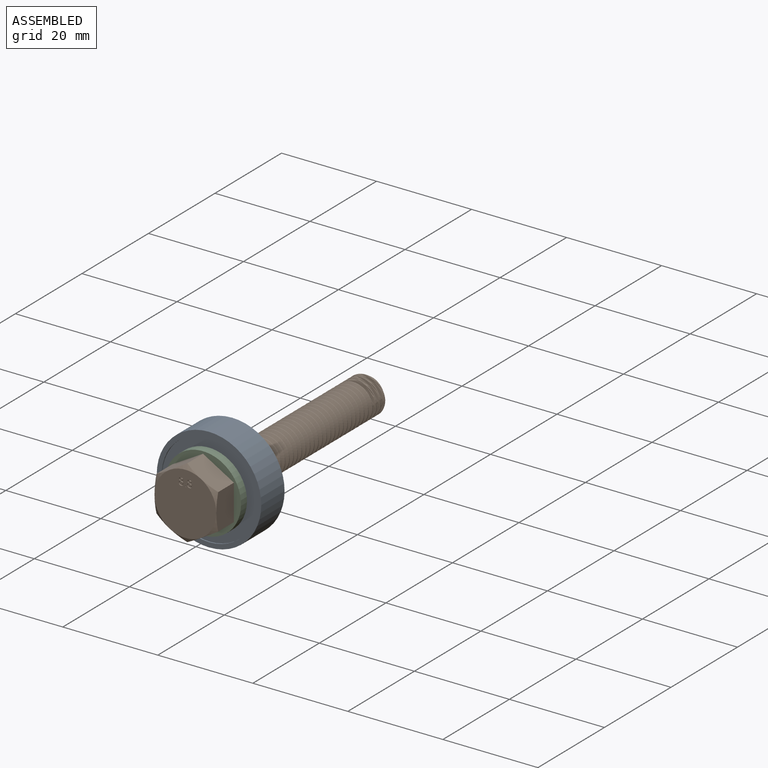
[diagram: assembled view]
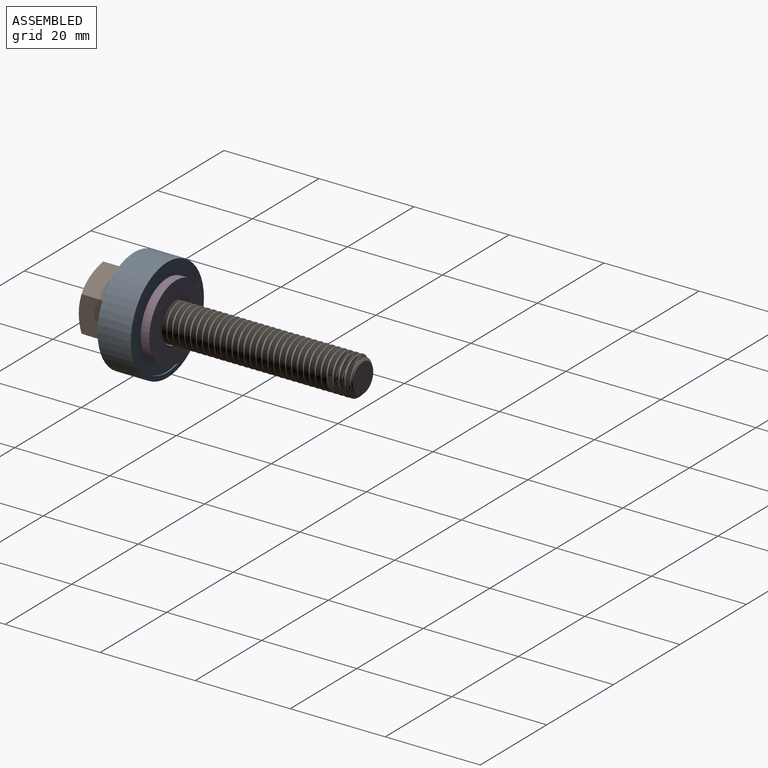
[diagram: assembled view, second angle]
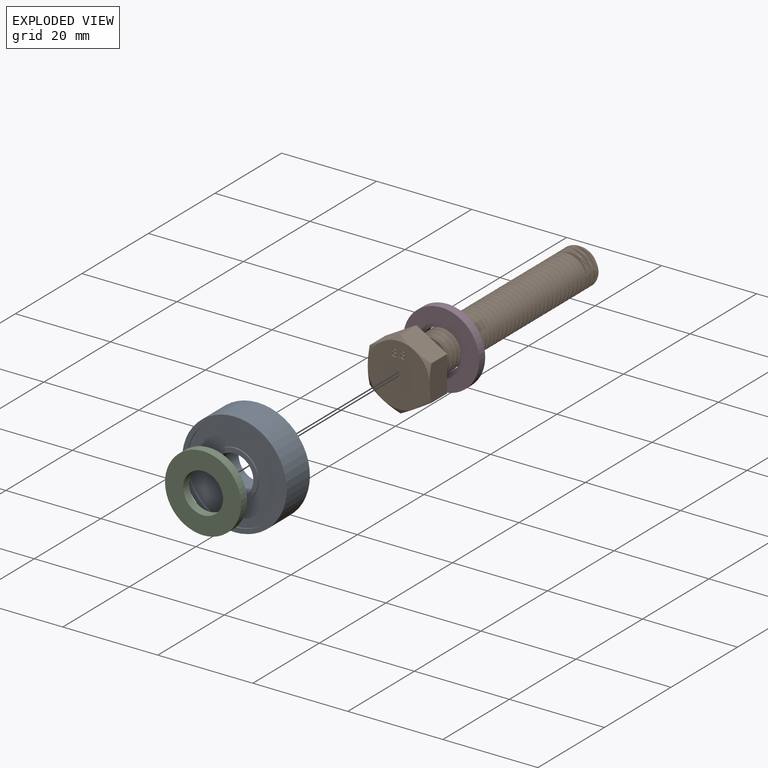
[diagram: exploded view]
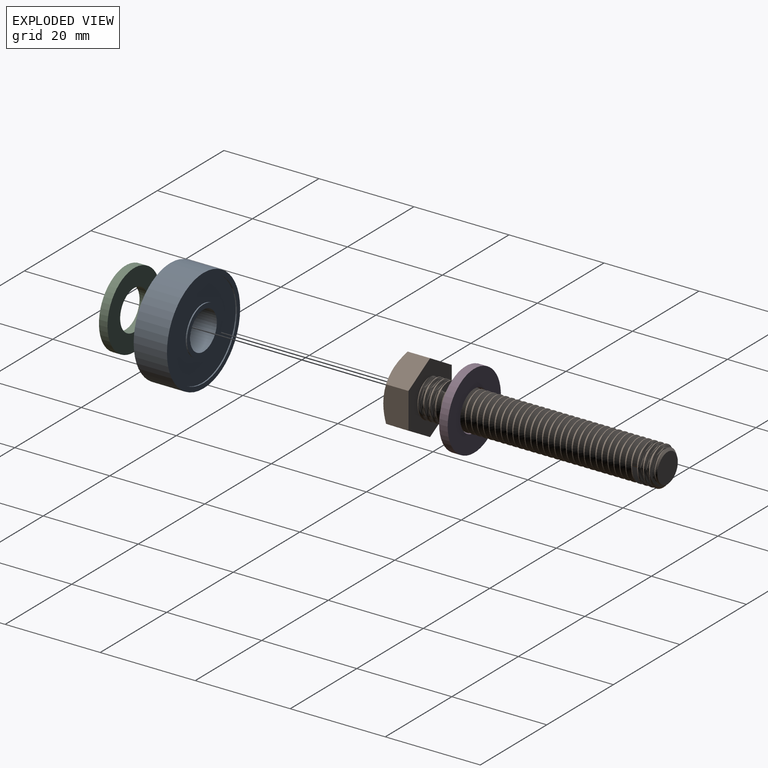
[diagram: exploded view, second angle]
ASSEMBLY  parts=4 mates=4
PART A: 12 faces, bbox 22x7x22 mm
  f0: cylinder r=5mm len=10mm, axis (0,1,0), area 7.9mm2, adj f4,f11
  f1: cylinder r=4mm len=8mm, axis (0,1,0), area 175.9mm2, adj f3,f4
  f2: cylinder r=5mm len=10mm, axis (0,1,0), area 7.9mm2, adj f3,f10
  f3: plane 10x10mm, normal (0,-1,0), area 28.3mm2, adj f1,f2
  f4: plane 10x10mm, normal (0,1,0), area 28.3mm2, adj f0,f1
  f5: cylinder r=10mm len=20mm, axis (0,1,0), area 15.7mm2, adj f9,f11
  f6: cylinder r=10mm len=20mm, axis (0,1,0), area 15.7mm2, adj f8,f10
  f7: cylinder r=11mm len=22mm, axis (0,1,0), area 483.8mm2, adj f8,f9
  f8: plane 22x22mm, normal (0,-1,0), area 66mm2, adj f6,f7
  f9: plane 22x22mm, normal (0,1,0), area 66mm2, adj f5,f7
  f10: plane 20x20mm, normal (0,-1,0), area 235.6mm2, adj f2,f6
  f11: plane 20x20mm, normal (0,1,0), area 235.6mm2, adj f0,f5
PART B: 63 faces, bbox 56.7x15.6x15.6 mm
  f0: plane 0.59x0.59mm, normal (-1,0,0), area 0.3mm2, adj f4,f5,f6,f7
  f1: plane 0.47x0.43mm, normal (-1,0,0), area 0.2mm2, adj f8,f9,f10,f11
  f2: plane 0.59x0.59mm, normal (-1,0,0), area 0.3mm2, adj f12,f13,f14,f15
  f3: plane 0.47x0.43mm, normal (-1,0,0), area 0.2mm2, adj f16,f17,f18,f19
  f4: extruded ~0.3x0.3mm, area 0.1mm2, adj f0,f5,f7,f21
  f5: extruded ~0.3x0.29mm, area 0.1mm2, adj f0,f4,f6,f21
  f6: extruded ~0.3x0.3mm, area 0.1mm2, adj f0,f5,f7,f21
  f7: extruded ~0.29x0.29mm, area 0.1mm2, adj f0,f4,f6,f21
  f8: extruded ~0.25x0.24mm, area 0.1mm2, adj f1,f9,f11,f21
  f9: extruded ~0.25x0.24mm, area 0.1mm2, adj f1,f8,f10,f21
  f10: extruded ~0.25x0.24mm, area 0.1mm2, adj f1,f9,f11,f21
  f11: extruded ~0.25x0.24mm, area 0.1mm2, adj f1,f8,f10,f21
  f12: extruded ~0.3x0.3mm, area 0.1mm2, adj f2,f13,f15,f22
  f13: extruded ~0.3x0.29mm, area 0.1mm2, adj f2,f12,f14,f22
  f14: extruded ~0.3x0.3mm, area 0.1mm2, adj f2,f13,f15,f22
  f15: extruded ~0.29x0.29mm, area 0.1mm2, adj f2,f12,f14,f22
  f16: extruded ~0.25x0.24mm, area 0.1mm2, adj f3,f17,f19,f22
  f17: extruded ~0.25x0.24mm, area 0.1mm2, adj f3,f16,f18,f22
  f18: extruded ~0.25x0.24mm, area 0.1mm2, adj f3,f17,f19,f22
  f19: extruded ~0.25x0.24mm, area 0.1mm2, adj f3,f16,f18,f22
  f20: plane 0.2x0.2mm, normal (-1,0,0), area 0mm2, adj f23,f24,f25,f26
  f21: plane 1.56x0.99mm, normal (-1,0,0), area 0.8mm2, adj f4,f5,f6,f7,f8,f9,f10,f11
  f22: plane 1.56x0.99mm, normal (-1,0,0), area 0.8mm2, adj f12,f13,f14,f15,f16,f17,f18,f19
  f23: plane 0.25x0.2mm, normal (0,1,0), area 0mm2, adj f20,f24,f26,f43
  f24: plane 0.25x0.2mm, normal (0,0,1), area 0mm2, adj f20,f23,f25,f43
  f25: plane 0.25x0.2mm, normal (0,-1,0), area 0mm2, adj f20,f24,f26,f43
  f26: plane 0.25x0.2mm, normal (0,0,-1), area 0mm2, adj f20,f23,f25,f43
  f27: extruded ~0.49x0.47mm, area 0.2mm2, adj f21,f28,f34,f43
  f28: extruded ~0.39x0.29mm, area 0.1mm2, adj f21,f27,f29,f43
  f29: extruded ~0.31x0.25mm, area 0.1mm2, adj f21,f28,f30,f43
  f30: extruded ~0.43x0.39mm, area 0.2mm2, adj f21,f29,f31,f43
  f31: extruded ~0.44x0.39mm, area 0.2mm2, adj f21,f30,f32,f43
  f32: extruded ~0.3x0.25mm, area 0.1mm2, adj f21,f31,f33,f43
  f33: extruded ~0.4x0.29mm, area 0.1mm2, adj f21,f32,f34,f43
  f34: extruded ~0.49x0.47mm, area 0.2mm2, adj f21,f27,f33,f43
  f35: extruded ~0.49x0.47mm, area 0.2mm2, adj f22,f36,f42,f43
  f36: extruded ~0.39x0.29mm, area 0.1mm2, adj f22,f35,f37,f43
  f37: extruded ~0.31x0.25mm, area 0.1mm2, adj f22,f36,f38,f43
  f38: extruded ~0.43x0.39mm, area 0.2mm2, adj f22,f37,f39,f43
  f39: extruded ~0.44x0.39mm, area 0.2mm2, adj f22,f38,f40,f43
  f40: extruded ~0.3x0.25mm, area 0.1mm2, adj f22,f39,f41,f43
  f41: extruded ~0.4x0.29mm, area 0.1mm2, adj f22,f40,f42,f43
  f42: extruded ~0.49x0.47mm, area 0.2mm2, adj f22,f35,f41,f43
  f43: plane 13x13mm, normal (-1,0,0), area 130.3mm2, adj f23,f24,f25,f26,f27,f28,f29,f30
  f44: cone r=6.5mm half-angle=60deg, axis (1,0,0), area 4.2mm2, adj f43,f50,f51
  f45: cone r=6.5mm half-angle=60deg, axis (1,0,0), area 4.2mm2, adj f43,f51,f52
  f46: cone r=6.5mm half-angle=60deg, axis (1,0,0), area 4.2mm2, adj f43,f52,f53
  f47: cone r=6.5mm half-angle=60deg, axis (1,0,0), area 4.2mm2, adj f43,f53,f54
  f48: cone r=6.5mm half-angle=60deg, axis (1,0,0), area 4.2mm2, adj f43,f50,f55
  f49: cone r=6.5mm half-angle=60deg, axis (1,0,0), area 4.2mm2, adj f43,f54,f55
  f50: plane 8.12x5.92mm, normal (0,1,0), area 38.3mm2, adj f44,f48,f51,f55,f58
  f51: plane 7.12x5.92mm, normal (0,0.5,0.87), area 38.3mm2, adj f44,f45,f50,f52,f58
  f52: plane 7.12x5.92mm, normal (0,-0.5,0.87), area 38.3mm2, adj f45,f46,f51,f53,f58
  f53: plane 8.12x5.92mm, normal (0,-1,0), area 38.3mm2, adj f46,f47,f52,f54,f58
  f54: plane 7.12x5.92mm, normal (0,-0.5,-0.87), area 38.3mm2, adj f47,f49,f53,f55,f58
  f55: plane 7.12x5.92mm, normal (0,0.5,-0.87), area 38.3mm2, adj f48,f49,f50,f54,f58
  f56: plane 6.13x6.13mm, normal (1,0,0), area 29.5mm2, adj f60
  f57: bspline ~50.47x8mm, area 839.5mm2, adj f58,f59,f60,f61
  f58: plane 15.49x13.48mm, normal (1,0,0), area 105.5mm2, adj f50,f51,f52,f53,f54,f55,f57,f59
  f59: cylinder r=3.19mm len=49.87mm, axis (1,0,0), area 37.2mm2, adj f57,f58,f60,f62
  f60: cone r=3.06mm half-angle=45deg, axis (-1,0,0), area 16.1mm2, adj f56,f57,f59,f61,f62
  f61: cylinder r=4mm len=49.06mm, axis (1,0,0), area 154.1mm2, adj f57,f58,f60,f62
  f62: bspline ~51.25x8mm, area 840.6mm2, adj f58,f59,f60,f61
PART C: 4 faces, bbox 16x1.8x16 mm
  f0: cylinder r=4.2mm len=8.4mm, axis (0,1,0), area 47.5mm2, adj f2,f3
  f1: cylinder r=8mm len=16mm, axis (0,1,0), area 90.5mm2, adj f2,f3
  f2: plane 16x16mm, normal (0,-1,0), area 145.6mm2, adj f0,f1
  f3: plane 16x16mm, normal (0,1,0), area 145.6mm2, adj f0,f1
PART D: same geometry as C
PLACE A t=(3.21,2.87,18.62)mm
PLACE B rot(axis=(0,0,1),90deg) t=(3.21,19.92,18.62)mm
PLACE C rot(axis=(0.71,0,-0.71),180deg) t=(3.21,-2.43,18.62)mm
PLACE D t=(3.21,8.17,18.62)mm
MATE fastened C.f0 <-> A.f7  axis (0,1,0) through (3.21,-0.63,18.62)mm
MATE planar B.f58 <-> C.f0  axis (0,1,0) through (3.15,-2.43,18.48)mm
MATE slider C.f0 <-> B.f44  axis (0,1,0) through (3.21,-0.63,18.62)mm
MATE fastened D.f0 <-> A.f0  axis (0,-1,0) through (3.21,6.37,18.62)mm
